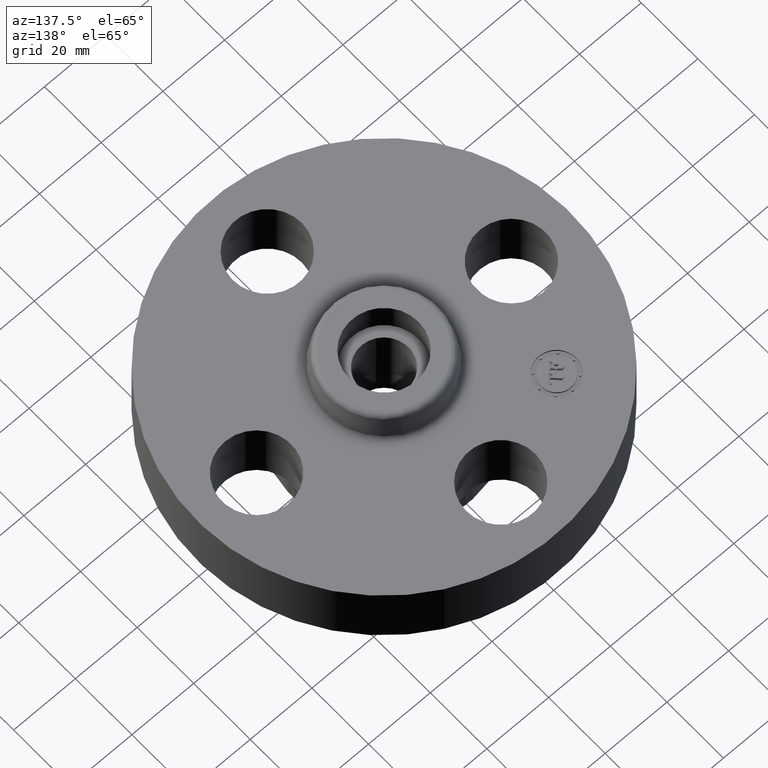
[diagram: clean part render]
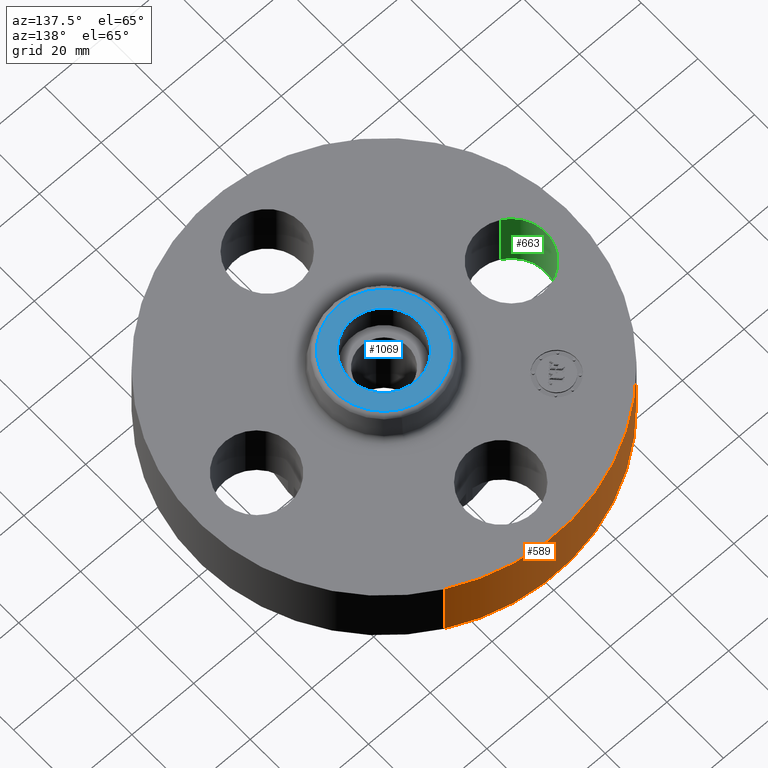
[diagram: same view with three faces highlighted in distinct colors, each labeled with its STEP entity id]
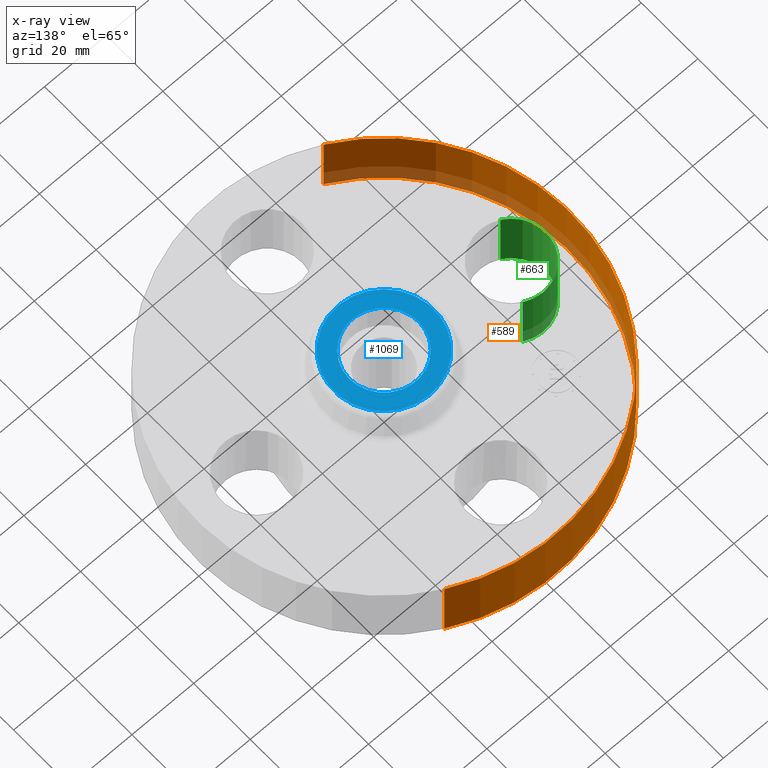
[diagram: x-ray of the same camera — body ghosted, the three highlighted faces saturated]
A machine part, auxiliary view with three faces highlighted in distinct colors.
The next image is the same camera in x-ray (body ghosted, the three faces saturated) — at least one of them is partly hidden behind the body in this view.
Their STEP definitions:

[orange] entity #589 — the highlighted cylindrical surface (partial cylindrical patch) has radius 60.325 mm, axis along (0, 0, -1).
#446=AXIS2_PLACEMENT_3D('Circle Axis2P3D',#444,#445,$) ;
#562=AXIS2_PLACEMENT_3D('Cylinder Axis2P3D',#559,#560,#561) ;
#573=AXIS2_PLACEMENT_3D('Circle Axis2P3D',#571,#572,$) ;
#444=CARTESIAN_POINT('Axis2P3D Location',(0.,0.,0.)) ;
#448=CARTESIAN_POINT('Vertex',(-1.13863565419,-2.0842585845,1.39870617276E-016)) ;
#450=CARTESIAN_POINT('Vertex',(1.13863565419,2.0842585845,1.39870617276E-016)) ;
#559=CARTESIAN_POINT('Axis2P3D Location',(0.,0.,0.500000000002)) ;
#564=CARTESIAN_POINT('Line Origine',(-1.13863565419,-2.0842585845,0.440000000002)) ;
#568=CARTESIAN_POINT('Vertex',(-1.13863565419,-2.0842585845,0.880000000004)) ;
#571=CARTESIAN_POINT('Axis2P3D Location',(0.,0.,0.880000000004)) ;
#575=CARTESIAN_POINT('Vertex',(1.13863565419,2.0842585845,0.880000000004)) ;
#578=CARTESIAN_POINT('Line Origine',(1.13863565419,2.0842585845,0.440000000002)) ;
#445=DIRECTION('Axis2P3D Direction',(0.,0.,-0.0393700787402)) ;
#560=DIRECTION('Axis2P3D Direction',(0.,0.,-0.0393700787402)) ;
#561=DIRECTION('Axis2P3D XDirection',(0.0188750212049,0.0345504945626,0.)) ;
#565=DIRECTION('Vector Direction',(0.,0.,-0.0393700787402)) ;
#572=DIRECTION('Axis2P3D Direction',(0.,0.,-0.0393700787402)) ;
#579=DIRECTION('Vector Direction',(0.,0.,-0.0393700787402)) ;
#566=VECTOR('Line Direction',#565,0.0393700787402) ;
#580=VECTOR('Line Direction',#579,0.0393700787402) ;
#584=ORIENTED_EDGE('',*,*,#452,.F.) ;
#585=ORIENTED_EDGE('',*,*,#570,.T.) ;
#586=ORIENTED_EDGE('',*,*,#577,.T.) ;
#587=ORIENTED_EDGE('',*,*,#582,.F.) ;
#589=ADVANCED_FACE('PartBody',(#588),#563,.T.) ;
#447=CIRCLE('generated circle',#446,2.37500000001) ;
#574=CIRCLE('generated circle',#573,2.37500000001) ;
#563=CYLINDRICAL_SURFACE('generated cylinder',#562,2.37500000001) ;
#452=EDGE_CURVE('',#449,#451,#447,.T.) ;
#570=EDGE_CURVE('',#449,#569,#567,.F.) ;
#577=EDGE_CURVE('',#569,#576,#574,.T.) ;
#582=EDGE_CURVE('',#451,#576,#581,.F.) ;
#583=EDGE_LOOP('',(#584,#585,#586,#587)) ;
#588=FACE_OUTER_BOUND('',#583,.T.) ;
#567=LINE('Line',#564,#566) ;
#581=LINE('Line',#578,#580) ;
#449=VERTEX_POINT('',#448) ;
#451=VERTEX_POINT('',#450) ;
#569=VERTEX_POINT('',#568) ;
#576=VERTEX_POINT('',#575) ;

[blue] entity #1069 — the highlighted planar face has unit normal (0, 0, -1).
#990=AXIS2_PLACEMENT_3D('Circle Axis2P3D',#988,#989,$) ;
#1009=AXIS2_PLACEMENT_3D('Circle Axis2P3D',#1007,#1008,$) ;
#1045=AXIS2_PLACEMENT_3D('Plane Axis2P3D',#1042,#1043,#1044) ;
#1053=AXIS2_PLACEMENT_3D('Circle Axis2P3D',#1051,#1052,$) ;
#1062=AXIS2_PLACEMENT_3D('Circle Axis2P3D',#1060,#1061,$) ;
#985=CARTESIAN_POINT('Vertex',(0.304153813049,0.556749820299,1.25000000001)) ;
#988=CARTESIAN_POINT('Axis2P3D Location',(0.,0.,1.25000000001)) ;
#992=CARTESIAN_POINT('Vertex',(-0.304153813049,-0.556749820299,1.25000000001)) ;
#1007=CARTESIAN_POINT('Axis2P3D Location',(0.,0.,1.25000000001)) ;
#1042=CARTESIAN_POINT('Axis2P3D Location',(0.,0.63441303927,1.25000000001)) ;
#1051=CARTESIAN_POINT('Axis2P3D Location',(6.99353086378E-017,-1.39870617276E-016,1.25000000001)) ;
#1055=CARTESIAN_POINT('Vertex',(-0.386136327233,0.210947236987,1.25000000001)) ;
#1057=CARTESIAN_POINT('Vertex',(0.386136327233,-0.210947236987,1.25000000001)) ;
#1060=CARTESIAN_POINT('Axis2P3D Location',(8.74191357973E-017,-1.39870617276E-016,1.25000000001)) ;
#989=DIRECTION('Axis2P3D Direction',(0.,0.,-0.0393700787402)) ;
#1008=DIRECTION('Axis2P3D Direction',(0.,0.,-0.0393700787402)) ;
#1043=DIRECTION('Axis2P3D Direction',(0.,0.,-0.0393700787402)) ;
#1044=DIRECTION('Axis2P3D XDirection',(0.0393700787402,0.,0.)) ;
#1052=DIRECTION('Axis2P3D Direction',(0.,0.,-0.0393700787402)) ;
#1061=DIRECTION('Axis2P3D Direction',(0.,0.,-0.0393700787402)) ;
#1048=ORIENTED_EDGE('',*,*,#994,.F.) ;
#1049=ORIENTED_EDGE('',*,*,#1011,.F.) ;
#1066=ORIENTED_EDGE('',*,*,#1059,.T.) ;
#1067=ORIENTED_EDGE('',*,*,#1064,.T.) ;
#1068=FACE_BOUND('',#1065,.T.) ;
#1069=ADVANCED_FACE('PartBody',(#1050,#1068),#1046,.F.) ;
#991=CIRCLE('generated circle',#990,0.63441303927) ;
#1010=CIRCLE('generated circle',#1009,0.63441303927) ;
#1054=CIRCLE('generated circle',#1053,0.440000000002) ;
#1063=CIRCLE('generated circle',#1062,0.440000000002) ;
#994=EDGE_CURVE('',#986,#993,#991,.T.) ;
#1011=EDGE_CURVE('',#993,#986,#1010,.T.) ;
#1059=EDGE_CURVE('',#1056,#1058,#1054,.T.) ;
#1064=EDGE_CURVE('',#1058,#1056,#1063,.T.) ;
#1047=EDGE_LOOP('',(#1048,#1049)) ;
#1065=EDGE_LOOP('',(#1066,#1067)) ;
#1050=FACE_OUTER_BOUND('',#1047,.T.) ;
#1046=PLANE('',#1045) ;
#986=VERTEX_POINT('',#985) ;
#993=VERTEX_POINT('',#992) ;
#1056=VERTEX_POINT('',#1055) ;
#1058=VERTEX_POINT('',#1057) ;

[green] entity #663 — the highlighted cylindrical surface (partial cylindrical patch) has radius 11.176 mm, axis along (0, 0, -1).
#509=AXIS2_PLACEMENT_3D('Circle Axis2P3D',#507,#508,$) ;
#636=AXIS2_PLACEMENT_3D('Cylinder Axis2P3D',#633,#634,#635) ;
#654=AXIS2_PLACEMENT_3D('Circle Axis2P3D',#652,#653,$) ;
#504=CARTESIAN_POINT('Vertex',(-1.41405276302,0.386136327233,0.)) ;
#507=CARTESIAN_POINT('Axis2P3D Location',(-1.62500000001,-1.39870617276E-016,0.)) ;
#511=CARTESIAN_POINT('Vertex',(-1.83594723699,-0.386136327233,0.)) ;
#633=CARTESIAN_POINT('Axis2P3D Location',(-1.62500000001,-2.98507657293E-016,0.87606299213)) ;
#638=CARTESIAN_POINT('Line Origine',(-1.83594723699,-0.386136327233,0.315000000001)) ;
#642=CARTESIAN_POINT('Vertex',(-1.83594723699,-0.386136327233,0.880000000004)) ;
#645=CARTESIAN_POINT('Line Origine',(-1.41405276302,0.386136327233,0.315000000001)) ;
#649=CARTESIAN_POINT('Vertex',(-1.41405276302,0.386136327233,0.880000000004)) ;
#652=CARTESIAN_POINT('Axis2P3D Location',(-1.62500000001,-2.98507657293E-016,0.880000000004)) ;
#508=DIRECTION('Axis2P3D Direction',(0.,0.,-0.0393700787402)) ;
#634=DIRECTION('Axis2P3D Direction',(0.,0.,-0.0393700787402)) ;
#635=DIRECTION('Axis2P3D XDirection',(0.0188750212049,0.0345504945626,0.)) ;
#639=DIRECTION('Vector Direction',(0.,0.,-0.0393700787402)) ;
#646=DIRECTION('Vector Direction',(0.,0.,-0.0393700787402)) ;
#653=DIRECTION('Axis2P3D Direction',(0.,0.,-0.0393700787402)) ;
#640=VECTOR('Line Direction',#639,0.0393700787402) ;
#647=VECTOR('Line Direction',#646,0.0393700787402) ;
#658=ORIENTED_EDGE('',*,*,#644,.F.) ;
#659=ORIENTED_EDGE('',*,*,#513,.T.) ;
#660=ORIENTED_EDGE('',*,*,#651,.T.) ;
#661=ORIENTED_EDGE('',*,*,#656,.F.) ;
#663=ADVANCED_FACE('PartBody',(#662),#637,.F.) ;
#510=CIRCLE('generated circle',#509,0.440000000002) ;
#655=CIRCLE('generated circle',#654,0.440000000002) ;
#637=CYLINDRICAL_SURFACE('generated cylinder',#636,0.440000000002) ;
#513=EDGE_CURVE('',#512,#505,#510,.T.) ;
#644=EDGE_CURVE('',#512,#643,#641,.F.) ;
#651=EDGE_CURVE('',#505,#650,#648,.F.) ;
#656=EDGE_CURVE('',#643,#650,#655,.T.) ;
#657=EDGE_LOOP('',(#658,#659,#660,#661)) ;
#662=FACE_OUTER_BOUND('',#657,.T.) ;
#641=LINE('Line',#638,#640) ;
#648=LINE('Line',#645,#647) ;
#505=VERTEX_POINT('',#504) ;
#512=VERTEX_POINT('',#511) ;
#643=VERTEX_POINT('',#642) ;
#650=VERTEX_POINT('',#649) ;